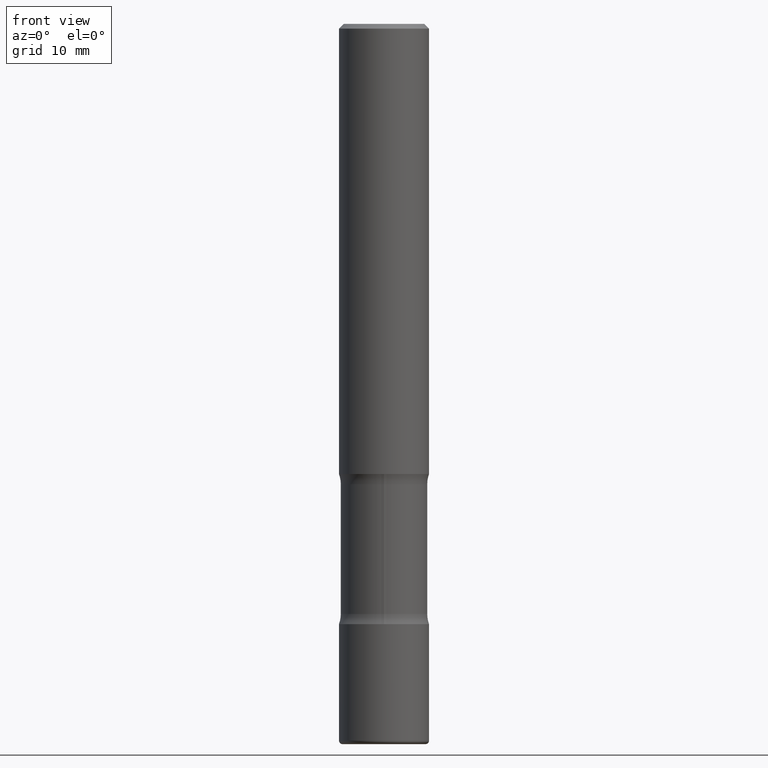
[diagram: clean part render]
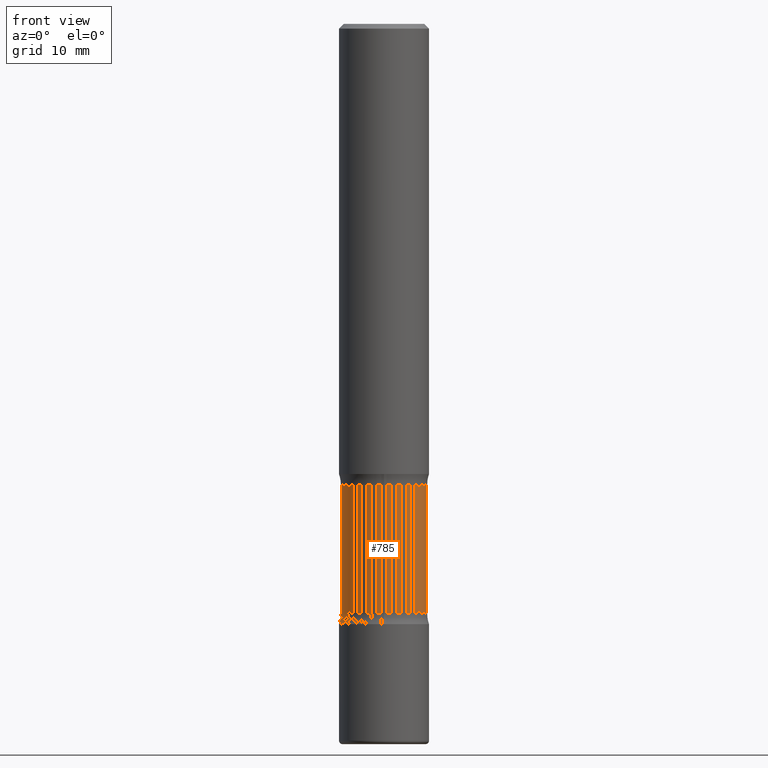
[diagram: same view with one face highlighted and labeled with its STEP entity id]
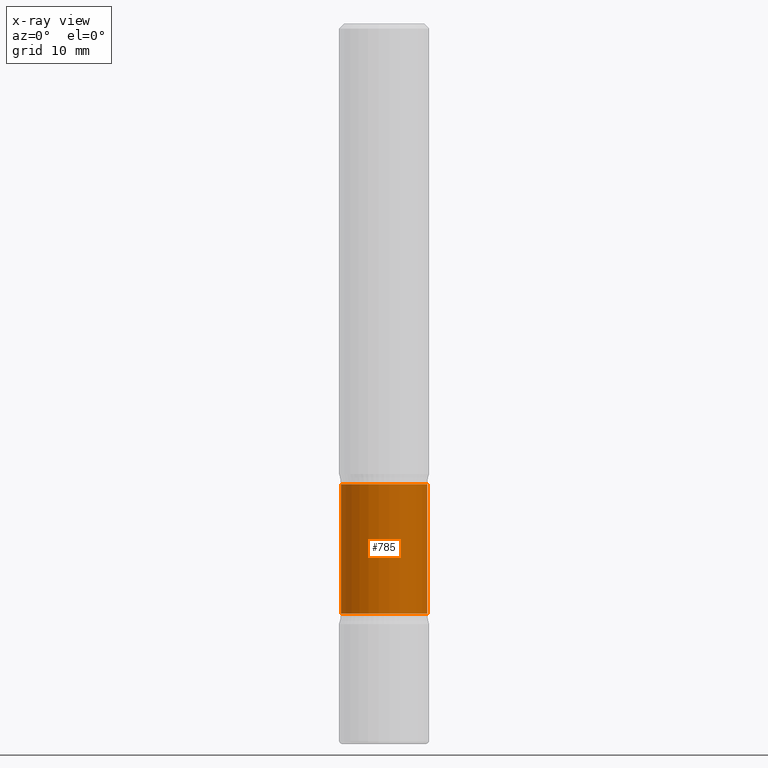
[diagram: x-ray of the same camera — body ghosted, the highlighted face saturated]
A machine part, front view. The second image highlights one B-rep face of the part: STEP entity #785.
The next image is the same camera in x-ray: the body ghosted, the highlighted face saturated — about 0% of this face is hidden behind the body in this view.
In plain terms, the highlighted cylindrical surface (partial cylindrical patch) has radius 4.572 mm, axis along (-0, 0, 1).
Its self-contained STEP definition (entity closure, byte-faithful):
#14 = EDGE_CURVE ( 'NONE', #73, #565, #39, .T. ) ;
#36 = EDGE_CURVE ( 'NONE', #179, #563, #526, .T. ) ;
#39 = CIRCLE ( 'NONE', #604, 0.1800000000000000488 ) ;
#55 = CARTESIAN_POINT ( 'NONE',  ( 0.1800000000000000211, -7.803460792314427030E-15, -1.875000000000000000 ) ) ;
#73 = VERTEX_POINT ( 'NONE', #413 ) ;
#86 = DIRECTION ( 'NONE',  ( 1.000000000000000000, -6.982962677686267499E-15, 0.000000000000000000 ) ) ;
#91 = CARTESIAN_POINT ( 'NONE',  ( 4.689545443575900529E-29, -6.695428035103134465E-15, -1.917646805273080179 ) ) ;
#106 = CARTESIAN_POINT ( 'NONE',  ( -0.1799999999999999933, -5.315355495757832321E-15, -1.917646805273080179 ) ) ;
#144 = DIRECTION ( 'NONE',  ( 1.000000000000000000, -6.982962677686269077E-15, 0.000000000000000000 ) ) ;
#150 = EDGE_CURVE ( 'NONE', #73, #179, #220, .T. ) ;
#160 = CARTESIAN_POINT ( 'NONE',  ( 6.009380583484072082E-29, -8.579802822335625240E-15, -2.457353194726919376 ) ) ;
#179 = VERTEX_POINT ( 'NONE', #106 ) ;
#187 = AXIS2_PLACEMENT_3D ( 'NONE', #91, #461, #144 ) ;
#198 = EDGE_LOOP ( 'NONE', ( #508, #768, #624, #659 ) ) ;
#208 = DIRECTION ( 'NONE',  ( -2.445468806185136877E-29, 3.491481338843145188E-15, 1.000000000000000000 ) ) ;
#216 = CARTESIAN_POINT ( 'NONE',  ( 4.585254011597131119E-29, -6.546527510330898707E-15, -1.875000000000000000 ) ) ;
#217 = CARTESIAN_POINT ( 'NONE',  ( 0.1800000000000000488, -9.836736104319153563E-15, -2.457353194726919376 ) ) ;
#220 = LINE ( 'NONE', #764, #745 ) ;
#221 = AXIS2_PLACEMENT_3D ( 'NONE', #216, #405, #86 ) ;
#266 = FACE_OUTER_BOUND ( 'NONE', #198, .T. ) ;
#309 = EDGE_CURVE ( 'NONE', #565, #563, #805, .T. ) ;
#313 = DIRECTION ( 'NONE',  ( -2.445468806185136877E-29, 3.491481338843145188E-15, 1.000000000000000000 ) ) ;
#333 = CARTESIAN_POINT ( 'NONE',  ( 0.1799999999999999933, -7.952361317086663578E-15, -1.917646805273080179 ) ) ;
#351 = DIRECTION ( 'NONE',  ( 1.000000000000000000, -6.982962677686266711E-15, 0.000000000000000000 ) ) ;
#399 = CYLINDRICAL_SURFACE ( 'NONE', #221, 0.1800000000000000211 ) ;
#405 = DIRECTION ( 'NONE',  ( -2.445468806185136597E-29, 3.491481338843145583E-15, 1.000000000000000000 ) ) ;
#413 = CARTESIAN_POINT ( 'NONE',  ( -0.1800000000000000488, -7.348630807762558854E-15, -2.457353194726919376 ) ) ;
#420 = VECTOR ( 'NONE', #313, 39.37007874015748143 ) ;
#461 = DIRECTION ( 'NONE',  ( -2.445468806185136597E-29, 3.491481338843145583E-15, 1.000000000000000000 ) ) ;
#508 = ORIENTED_EDGE ( 'NONE', *, *, #150, .F. ) ;
#513 = DIRECTION ( 'NONE',  ( -2.445468806185136597E-29, 3.491481338843145583E-15, 1.000000000000000000 ) ) ;
#526 = CIRCLE ( 'NONE', #187, 0.1799999999999999933 ) ;
#563 = VERTEX_POINT ( 'NONE', #333 ) ;
#565 = VERTEX_POINT ( 'NONE', #217 ) ;
#604 = AXIS2_PLACEMENT_3D ( 'NONE', #160, #513, #351 ) ;
#624 = ORIENTED_EDGE ( 'NONE', *, *, #309, .T. ) ;
#659 = ORIENTED_EDGE ( 'NONE', *, *, #36, .F. ) ;
#745 = VECTOR ( 'NONE', #208, 39.37007874015748143 ) ;
#764 = CARTESIAN_POINT ( 'NONE',  ( -0.1800000000000000211, -5.267550585962718025E-15, -1.875000000000000000 ) ) ;
#768 = ORIENTED_EDGE ( 'NONE', *, *, #14, .T. ) ;
#785 = ADVANCED_FACE ( 'NONE', ( #266 ), #399, .T. ) ;
#805 = LINE ( 'NONE', #55, #420 ) ;